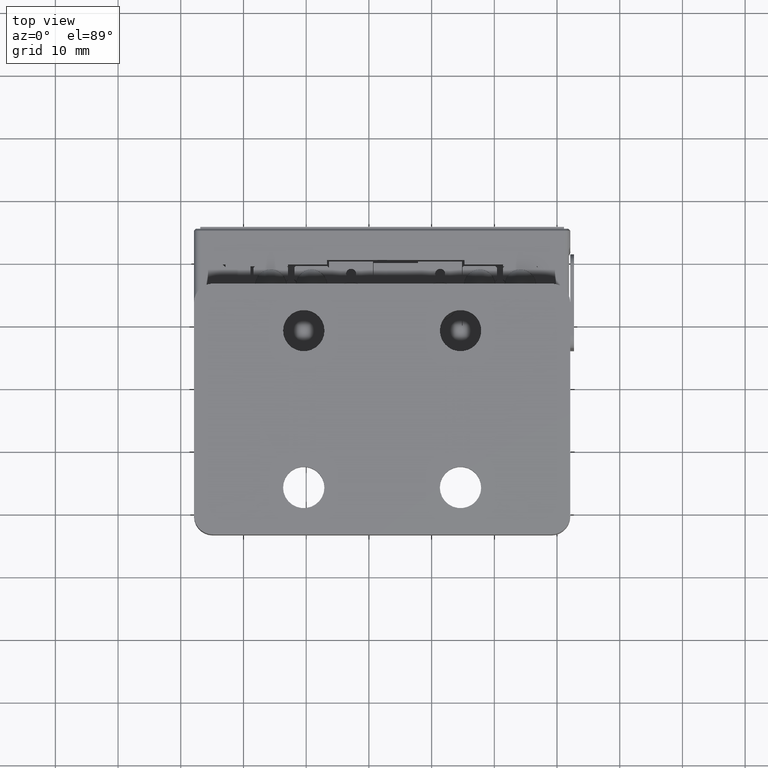
[diagram: clean part render]
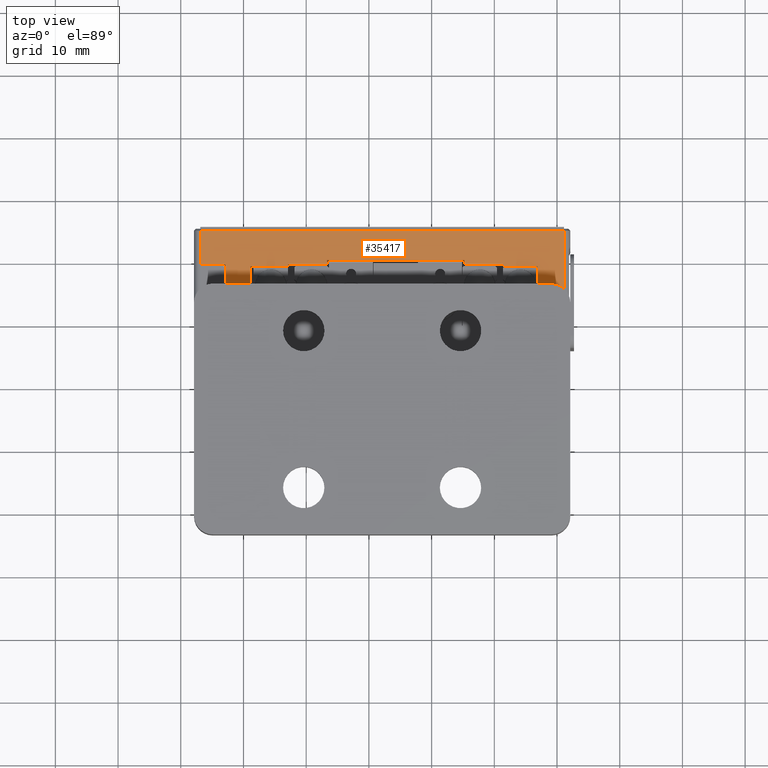
[diagram: same view with one face highlighted and labeled with its STEP entity id]
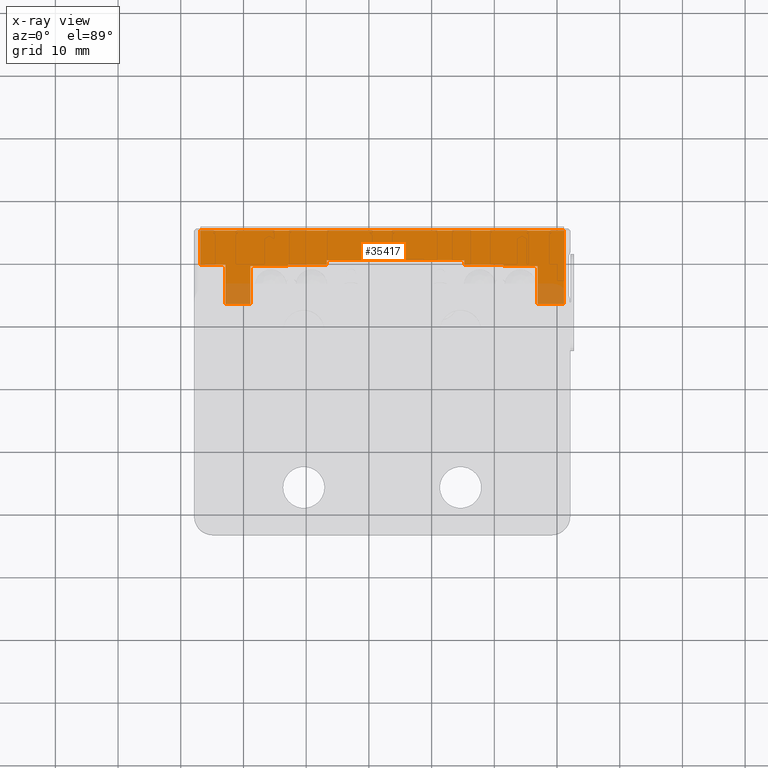
[diagram: x-ray of the same camera — body ghosted, the highlighted face saturated]
A machine part, top view. The second image highlights one B-rep face of the part: STEP entity #35417.
The next image is the same camera in x-ray: the body ghosted, the highlighted face saturated — about 7% of this face is hidden behind the body in this view.
In plain terms, the highlighted planar face has unit normal (-0, 0, -1).
Its self-contained STEP definition (entity closure, byte-faithful):
#124 = ORIENTED_EDGE ( 'NONE', *, *, #13726, .F. ) ;
#627 = DIRECTION ( 'NONE',  ( 1.000000000000000000, -1.734723475976808327E-16, -6.982962677686266711E-15 ) ) ;
#1017 = CARTESIAN_POINT ( 'NONE',  ( -22.89199758064799184, 2.574186781755703368, 90.02513947737027422 ) ) ;
#1115 = EDGE_CURVE ( 'NONE', #23559, #26733, #12222, .T. ) ;
#1394 = CARTESIAN_POINT ( 'NONE',  ( 21.40800241935200532, 8.574186781755704700, 90.02513947736994737 ) ) ;
#1650 = VERTEX_POINT ( 'NONE', #26726 ) ;
#1914 = LINE ( 'NONE', #24099, #16902 ) ;
#2107 = ORIENTED_EDGE ( 'NONE', *, *, #9938, .F. ) ;
#3153 = CARTESIAN_POINT ( 'NONE',  ( -22.89199758064799184, 8.874186781755703635, 90.02513947737027422 ) ) ;
#3773 = VECTOR ( 'NONE', #19213, 1000.000000000000000 ) ;
#3813 = DIRECTION ( 'NONE',  ( -6.982962677686266711E-15, 0.000000000000000000, -1.000000000000000000 ) ) ;
#4005 = CARTESIAN_POINT ( 'NONE',  ( -22.89199758064799184, 2.574186781755704700, 90.02513947737027422 ) ) ;
#4491 = EDGE_CURVE ( 'NONE', #27380, #23559, #10689, .T. ) ;
#4719 = CARTESIAN_POINT ( 'NONE',  ( -18.89199758064800250, 2.574186781755703368, 90.02513947737024580 ) ) ;
#5062 = DIRECTION ( 'NONE',  ( -1.000000000000000000, 0.000000000000000000, 6.982962677686266711E-15 ) ) ;
#5228 = ORIENTED_EDGE ( 'NONE', *, *, #11733, .F. ) ;
#5605 = LINE ( 'NONE', #35414, #18201 ) ;
#6604 = DIRECTION ( 'NONE',  ( -0.000000000000000000, -1.000000000000000000, -0.000000000000000000 ) ) ;
#6964 = CARTESIAN_POINT ( 'NONE',  ( -26.89199758064800960, 8.874186781755703635, 90.02513947737030264 ) ) ;
#7028 = EDGE_CURVE ( 'NONE', #30414, #19509, #17998, .T. ) ;
#7226 = CARTESIAN_POINT ( 'NONE',  ( -12.89199758064799717, 8.874186781755703635, 90.02513947737020317 ) ) ;
#7684 = ORIENTED_EDGE ( 'NONE', *, *, #10773, .F. ) ;
#7900 = DIRECTION ( 'NONE',  ( -1.000000000000000000, 0.000000000000000000, 6.982962677686266711E-15 ) ) ;
#7971 = CARTESIAN_POINT ( 'NONE',  ( -6.691997580648013866, 9.574186781755704700, 90.02513947737016053 ) ) ;
#8093 = ORIENTED_EDGE ( 'NONE', *, *, #30593, .F. ) ;
#8212 = CARTESIAN_POINT ( 'NONE',  ( -12.89199758064799006, 8.574186781755704700, 90.02513947737020317 ) ) ;
#8343 = LINE ( 'NONE', #19438, #15962 ) ;
#8475 = CARTESIAN_POINT ( 'NONE',  ( 26.90800241935200532, 2.574186781755704700, 90.02513947736991895 ) ) ;
#8497 = ORIENTED_EDGE ( 'NONE', *, *, #22097, .T. ) ;
#8817 = LINE ( 'NONE', #27574, #18407 ) ;
#8984 = EDGE_LOOP ( 'NONE', ( #8093, #30159, #12659, #16000, #19680, #25944, #17426, #8497, #7684, #17576, #17209, #5228, #16318, #2107, #21098, #124, #24519, #18244 ) ) ;
#9123 = DIRECTION ( 'NONE',  ( -0.000000000000000000, -1.000000000000000000, -0.000000000000000000 ) ) ;
#9286 = CARTESIAN_POINT ( 'NONE',  ( 32.10800241935200461, 2.574186781755704700, 90.02513947736989053 ) ) ;
#9632 = DIRECTION ( 'NONE',  ( -1.000000000000000000, 0.000000000000000000, 6.982962677686266711E-15 ) ) ;
#9776 = VERTEX_POINT ( 'NONE', #8475 ) ;
#9938 = EDGE_CURVE ( 'NONE', #1650, #30564, #26629, .T. ) ;
#10418 = VERTEX_POINT ( 'NONE', #11052 ) ;
#10428 = EDGE_CURVE ( 'NONE', #17949, #27864, #8343, .T. ) ;
#10672 = VECTOR ( 'NONE', #20739, 1000.000000000000000 ) ;
#10689 = LINE ( 'NONE', #29984, #17827 ) ;
#10694 = VERTEX_POINT ( 'NONE', #7226 ) ;
#10765 = VECTOR ( 'NONE', #12177, 1000.000000000000000 ) ;
#10773 = EDGE_CURVE ( 'NONE', #32158, #28756, #24675, .T. ) ;
#11052 = CARTESIAN_POINT ( 'NONE',  ( 31.10800241935200816, 14.27418678176769262, 90.02513947736781574 ) ) ;
#11191 = AXIS2_PLACEMENT_3D ( 'NONE', #23982, #3813, #17991 ) ;
#11733 = EDGE_CURVE ( 'NONE', #28577, #30414, #5605, .T. ) ;
#11850 = LINE ( 'NONE', #14763, #31853 ) ;
#12050 = CARTESIAN_POINT ( 'NONE',  ( -6.691997580648013866, 2.574186781755704700, 90.02513947737016053 ) ) ;
#12177 = DIRECTION ( 'NONE',  ( 0.000000000000000000, 1.000000000000000000, 0.000000000000000000 ) ) ;
#12222 = LINE ( 'NONE', #12050, #14519 ) ;
#12371 = LINE ( 'NONE', #9286, #10672 ) ;
#12579 = DIRECTION ( 'NONE',  ( -1.000000000000000000, 0.000000000000000000, 6.982962677686266711E-15 ) ) ;
#12659 = ORIENTED_EDGE ( 'NONE', *, *, #17371, .T. ) ;
#13181 = CARTESIAN_POINT ( 'NONE',  ( -18.89199758064800250, 8.574186781755706477, 90.02513947737024580 ) ) ;
#13726 = EDGE_CURVE ( 'NONE', #26733, #10694, #29900, .T. ) ;
#13811 = EDGE_CURVE ( 'NONE', #30564, #28577, #11850, .T. ) ;
#13857 = VECTOR ( 'NONE', #35512, 1000.000000000000000 ) ;
#14519 = VECTOR ( 'NONE', #6604, 1000.000000000000000 ) ;
#14545 = LINE ( 'NONE', #28919, #26805 ) ;
#14763 = CARTESIAN_POINT ( 'NONE',  ( -18.89199758064800250, 2.574186781755704700, 90.02513947737024580 ) ) ;
#15962 = VECTOR ( 'NONE', #12579, 1000.000000000000000 ) ;
#16000 = ORIENTED_EDGE ( 'NONE', *, *, #17962, .F. ) ;
#16030 = LINE ( 'NONE', #8212, #19974 ) ;
#16105 = VECTOR ( 'NONE', #7900, 1000.000000000000000 ) ;
#16318 = ORIENTED_EDGE ( 'NONE', *, *, #13811, .F. ) ;
#16674 = DIRECTION ( 'NONE',  ( -1.000000000000000000, 0.000000000000000000, 6.982962677686266711E-15 ) ) ;
#16799 = CARTESIAN_POINT ( 'NONE',  ( 31.10800241935200816, 2.574186781755704700, 90.02513947736989053 ) ) ;
#16902 = VECTOR ( 'NONE', #27364, 1000.000000000000000 ) ;
#17209 = ORIENTED_EDGE ( 'NONE', *, *, #7028, .F. ) ;
#17371 = EDGE_CURVE ( 'NONE', #17949, #27905, #18491, .T. ) ;
#17426 = ORIENTED_EDGE ( 'NONE', *, *, #29505, .F. ) ;
#17576 = ORIENTED_EDGE ( 'NONE', *, *, #25245, .T. ) ;
#17827 = VECTOR ( 'NONE', #5062, 1000.000000000000000 ) ;
#17949 = VERTEX_POINT ( 'NONE', #31647 ) ;
#17962 = EDGE_CURVE ( 'NONE', #32535, #27905, #14545, .T. ) ;
#17991 = DIRECTION ( 'NONE',  ( -1.000000000000000000, 0.000000000000000000, 6.982962677686266711E-15 ) ) ;
#17998 = LINE ( 'NONE', #4005, #10765 ) ;
#18201 = VECTOR ( 'NONE', #16674, 1000.000000000000000 ) ;
#18244 = ORIENTED_EDGE ( 'NONE', *, *, #4491, .F. ) ;
#18407 = VECTOR ( 'NONE', #627, 1000.000000000000000 ) ;
#18491 = LINE ( 'NONE', #1394, #33732 ) ;
#18536 = VECTOR ( 'NONE', #25304, 1000.000000000000000 ) ;
#19082 = CARTESIAN_POINT ( 'NONE',  ( 15.20800241935201313, 9.574186781755704700, 90.02513947737000422 ) ) ;
#19213 = DIRECTION ( 'NONE',  ( 0.000000000000000000, 1.000000000000000000, 0.000000000000000000 ) ) ;
#19438 = CARTESIAN_POINT ( 'NONE',  ( 32.10800241935200461, 8.874186781755703635, 90.02513947736989053 ) ) ;
#19509 = VERTEX_POINT ( 'NONE', #3153 ) ;
#19680 = ORIENTED_EDGE ( 'NONE', *, *, #30242, .F. ) ;
#19974 = VECTOR ( 'NONE', #35128, 1000.000000000000000 ) ;
#20056 = CARTESIAN_POINT ( 'NONE',  ( 15.20800241935200958, 8.874186781755703635, 90.02513947737000422 ) ) ;
#20294 = VERTEX_POINT ( 'NONE', #28296 ) ;
#20739 = DIRECTION ( 'NONE',  ( -1.000000000000000000, 0.000000000000000000, 6.982962677686266711E-15 ) ) ;
#21098 = ORIENTED_EDGE ( 'NONE', *, *, #30999, .T. ) ;
#21202 = CARTESIAN_POINT ( 'NONE',  ( -6.691997580648013866, 8.874186781755703635, 90.02513947737016053 ) ) ;
#21416 = CARTESIAN_POINT ( 'NONE',  ( 26.90800241935200532, 2.574186781755704700, 90.02513947736991895 ) ) ;
#22097 = EDGE_CURVE ( 'NONE', #10418, #28756, #35687, .T. ) ;
#23492 = VECTOR ( 'NONE', #27901, 1000.000000000000000 ) ;
#23559 = VERTEX_POINT ( 'NONE', #7971 ) ;
#23982 = CARTESIAN_POINT ( 'NONE',  ( 32.10800241935200461, 2.574186781755704700, 90.02513947736989053 ) ) ;
#24099 = CARTESIAN_POINT ( 'NONE',  ( 15.20800241935200958, 2.574186781755704700, 90.02513947737000422 ) ) ;
#24433 = CARTESIAN_POINT ( 'NONE',  ( 32.10800241935200461, 8.874186781755703635, 90.02513947736989053 ) ) ;
#24519 = ORIENTED_EDGE ( 'NONE', *, *, #1115, .F. ) ;
#24675 = LINE ( 'NONE', #33046, #3773 ) ;
#25245 = EDGE_CURVE ( 'NONE', #32158, #19509, #8817, .T. ) ;
#25304 = DIRECTION ( 'NONE',  ( -1.000000000000000000, 0.000000000000000000, 6.982962677686266711E-15 ) ) ;
#25603 = CARTESIAN_POINT ( 'NONE',  ( -26.89199758064800960, 14.27418678180765177, 90.02513947734084354 ) ) ;
#25944 = ORIENTED_EDGE ( 'NONE', *, *, #32503, .F. ) ;
#26629 = LINE ( 'NONE', #35713, #16105 ) ;
#26671 = DIRECTION ( 'NONE',  ( -0.000000000000000000, -1.000000000000000000, -0.000000000000000000 ) ) ;
#26726 = CARTESIAN_POINT ( 'NONE',  ( -12.89199758064799717, 8.574186781755706477, 90.02513947737020317 ) ) ;
#26733 = VERTEX_POINT ( 'NONE', #21202 ) ;
#26805 = VECTOR ( 'NONE', #9632, 1000.000000000000000 ) ;
#27052 = DIRECTION ( 'NONE',  ( 0.000000000000000000, 1.000000000000000000, 0.000000000000000000 ) ) ;
#27322 = CARTESIAN_POINT ( 'NONE',  ( 32.10800241935200461, 14.27418678175985001, 90.02513947736574096 ) ) ;
#27364 = DIRECTION ( 'NONE',  ( 0.000000000000000000, 1.000000000000000000, 0.000000000000000000 ) ) ;
#27380 = VERTEX_POINT ( 'NONE', #19082 ) ;
#27574 = CARTESIAN_POINT ( 'NONE',  ( -27.89199758064798829, 8.874186781755703635, 90.02513947737030264 ) ) ;
#27595 = LINE ( 'NONE', #21416, #33953 ) ;
#27728 = LINE ( 'NONE', #16799, #23492 ) ;
#27864 = VERTEX_POINT ( 'NONE', #20056 ) ;
#27901 = DIRECTION ( 'NONE',  ( -0.000000000000000000, -1.000000000000000000, -0.000000000000000000 ) ) ;
#27905 = VERTEX_POINT ( 'NONE', #30802 ) ;
#28296 = CARTESIAN_POINT ( 'NONE',  ( 31.10800241935200816, 2.574186781755704700, 90.02513947736989053 ) ) ;
#28577 = VERTEX_POINT ( 'NONE', #4719 ) ;
#28756 = VERTEX_POINT ( 'NONE', #25603 ) ;
#28919 = CARTESIAN_POINT ( 'NONE',  ( 32.10800241935200461, 8.574186781748741382, 90.02513947736989053 ) ) ;
#29448 = PLANE ( 'NONE',  #11191 ) ;
#29505 = EDGE_CURVE ( 'NONE', #10418, #20294, #27728, .T. ) ;
#29900 = LINE ( 'NONE', #24433, #13857 ) ;
#29984 = CARTESIAN_POINT ( 'NONE',  ( 32.10800241935200461, 9.574186781755704700, 90.02513947736989053 ) ) ;
#30159 = ORIENTED_EDGE ( 'NONE', *, *, #10428, .F. ) ;
#30242 = EDGE_CURVE ( 'NONE', #9776, #32535, #27595, .T. ) ;
#30414 = VERTEX_POINT ( 'NONE', #1017 ) ;
#30564 = VERTEX_POINT ( 'NONE', #13181 ) ;
#30593 = EDGE_CURVE ( 'NONE', #27864, #27380, #1914, .T. ) ;
#30802 = CARTESIAN_POINT ( 'NONE',  ( 21.40800241935200532, 8.574186781752803910, 90.02513947736994737 ) ) ;
#30999 = EDGE_CURVE ( 'NONE', #1650, #10694, #16030, .T. ) ;
#31450 = FACE_OUTER_BOUND ( 'NONE', #8984, .T. ) ;
#31647 = CARTESIAN_POINT ( 'NONE',  ( 21.40800241935200532, 8.874186781755703635, 90.02513947736994737 ) ) ;
#31853 = VECTOR ( 'NONE', #9123, 1000.000000000000000 ) ;
#32158 = VERTEX_POINT ( 'NONE', #6964 ) ;
#32503 = EDGE_CURVE ( 'NONE', #20294, #9776, #12371, .T. ) ;
#32535 = VERTEX_POINT ( 'NONE', #34735 ) ;
#33046 = CARTESIAN_POINT ( 'NONE',  ( -26.89199758064800960, 2.574186781755704700, 90.02513947737030264 ) ) ;
#33732 = VECTOR ( 'NONE', #26671, 1000.000000000000000 ) ;
#33953 = VECTOR ( 'NONE', #27052, 1000.000000000000000 ) ;
#34735 = CARTESIAN_POINT ( 'NONE',  ( 26.90800241935200532, 8.574186781739436825, 90.02513947736991895 ) ) ;
#35128 = DIRECTION ( 'NONE',  ( 0.000000000000000000, 1.000000000000000000, 0.000000000000000000 ) ) ;
#35414 = CARTESIAN_POINT ( 'NONE',  ( 32.10800241935200461, 2.574186781755703368, 90.02513947736989053 ) ) ;
#35417 = ADVANCED_FACE ( 'NONE', ( #31450 ), #29448, .F. ) ;
#35512 = DIRECTION ( 'NONE',  ( -1.000000000000000000, 0.000000000000000000, 6.982962677686266711E-15 ) ) ;
#35687 = LINE ( 'NONE', #27322, #18536 ) ;
#35713 = CARTESIAN_POINT ( 'NONE',  ( 32.10800241935200461, 8.574186781755706477, 90.02513947736989053 ) ) ;